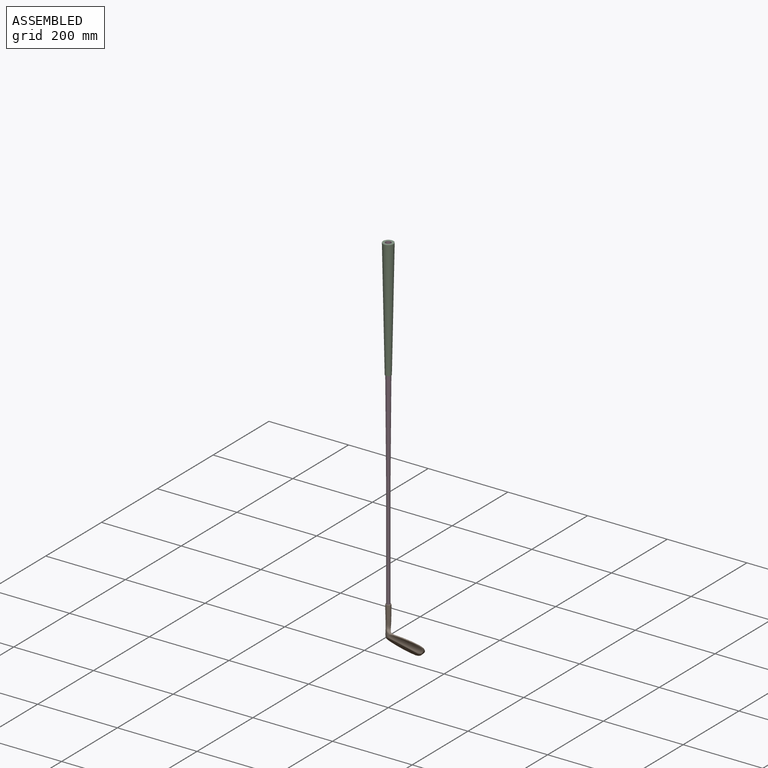
[diagram: assembled view]
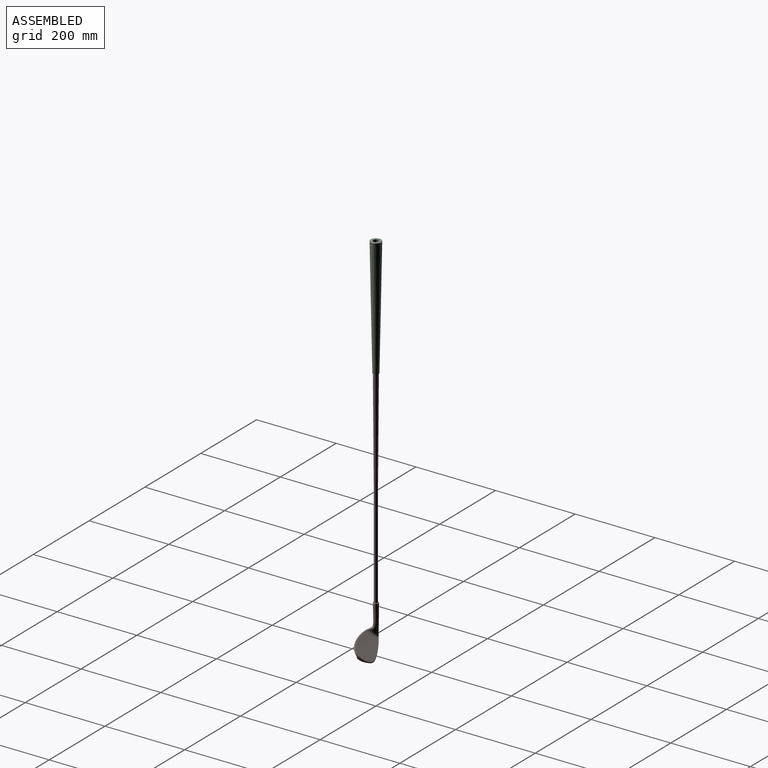
[diagram: assembled view, second angle]
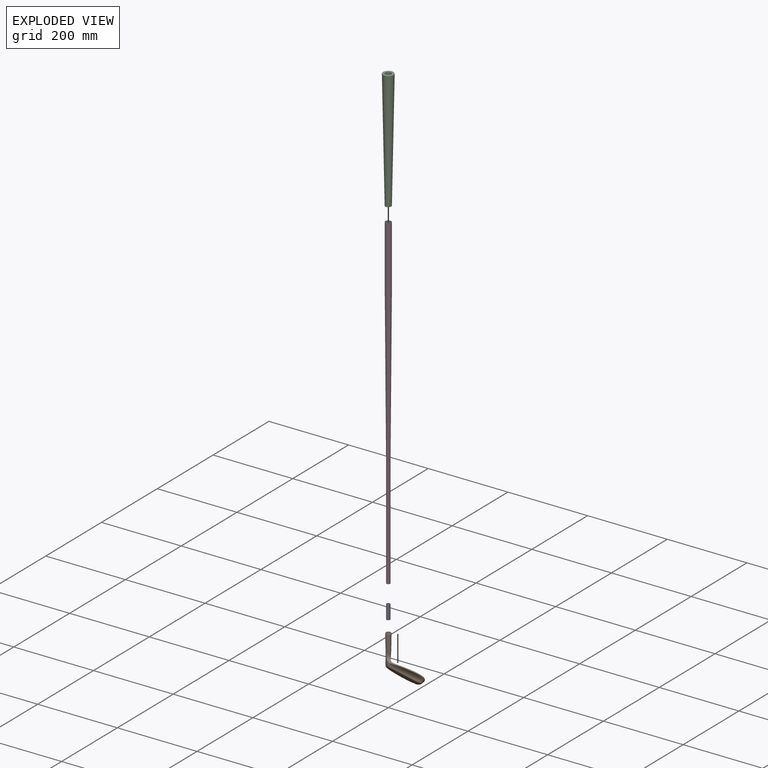
[diagram: exploded view]
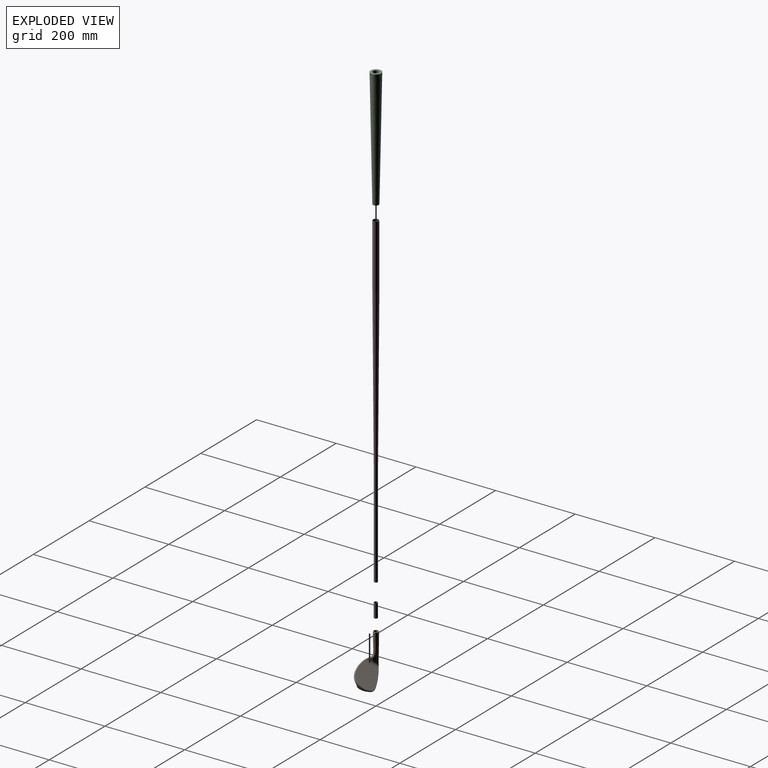
[diagram: exploded view, second angle]
ASSEMBLY  parts=4 mates=3
PART A: 4 faces, bbox 9x35x9 mm
  f0: cylinder r=4.5mm len=35mm, axis (0,1,0), area 990.6mm2, adj f1,f2
  f1: plane 9.01x9.01mm, normal (0,-1,0), area 15.9mm2, adj f0,f3
  f2: plane 9.01x9.01mm, normal (0,1,0), area 15.9mm2, adj f0,f3
  f3: cylinder r=3.9mm len=35mm, axis (0,1,0), area 858.5mm2, adj f1,f2
PART B: 27 faces, bbox 89.9x120.4x45.7 mm
  f0: bspline ~47.96x28.33mm, area 763.5mm2, adj f13,f20,f21,f22
  f1: bspline ~56.34x10.85mm, area 512.6mm2, adj f2,f3,f4,f6,f12,f24
  f2: bspline ~12.59x8.96mm, area 113.2mm2, adj f1,f4,f23,f24
  f3: bspline ~5.36x2.33mm, area 2.9mm2, adj f1,f23,f24
  f4: bspline ~19.62x8.18mm, area 153.8mm2, adj f1,f2,f6,f8,f23
  f5: bspline ~35.44x7.05mm, area 149.7mm2, adj f8,f12,f14,f23
  f6: bspline ~43.74x36.68mm, area 545.2mm2, adj f1,f4,f8,f12,f13,f16,f17,f22
  f7: bspline ~10.82x7.12mm, area 52.5mm2, adj f9,f13,f15,f16
  f8: bspline ~33.3x11.17mm, area 226.4mm2, adj f4,f5,f6,f14,f15,f16
  f9: bspline ~21.13x14.35mm, area 252.4mm2, adj f7,f10,f13,f14,f15,f20
  f10: bspline ~42.31x24.06mm, area 284.7mm2, adj f9,f11,f14,f18,f19,f20
  f11: bspline ~32.77x29.93mm, area 242mm2, adj f10,f12,f14,f18
  f12: bspline ~83.38x31.9mm, area 1117.2mm2, adj f1,f5,f6,f11,f17,f18,f23
  f13: bspline ~19.91x13.93mm, area 182.3mm2, adj f0,f6,f7,f9,f16,f22
  f14: bspline ~37.1x22.41mm, area 283.7mm2, adj f5,f8,f9,f10,f11,f15
  f15: bspline ~14.02x5.47mm, area 66.4mm2, adj f7,f8,f9,f14
  f16: bspline ~11.97x6.04mm, area 55.9mm2, adj f6,f7,f8,f13
  f17: bspline ~71.83x25.45mm, area 1620.9mm2, adj f6,f12,f18,f21,f22
  f18: bspline ~80.76x34.28mm, area 2834.7mm2, adj f10,f11,f12,f17,f19,f21
  f19: bspline ~29.85x17.26mm, area 347.9mm2, adj f10,f18,f20,f21
  f20: bspline ~52.75x29.91mm, area 975mm2, adj f0,f9,f10,f19
  f21: bspline ~25.13x15.42mm, area 329.3mm2, adj f0,f17,f18,f19,f22
  f22: bspline ~43.05x12.98mm, area 243.1mm2, adj f0,f6,f13,f17,f21
  f23: bspline ~49.04x11.32mm, area 325mm2, adj f2,f3,f4,f5,f12,f24
  f24: plane 12.84x12.69mm, normal (0,1,0), area 56.8mm2, adj f1,f2,f3,f23,f25
  f25: cylinder r=4.51mm len=35mm, axis (0,1,0), area 991.7mm2, adj f24,f26
  f26: plane 9.02x9.02mm, normal (0,1,0), area 63.9mm2, adj f25
PART C: 3 faces, bbox 26.3x300x26.3 mm
  f0: cone r=7.41mm half-angle=1.1deg, axis (0,1,0), area 19403.5mm2, adj f1,f2
  f1: plane 26.34x26.34mm, normal (0,1,0), area 372.5mm2, adj f0,f2
  f2: cylinder r=7.41mm len=300mm, axis (0,-1,0), area 13971mm2, adj f0,f1
PART D: 9 faces, bbox 14.8x820x14.8 mm
  f0: cylinder r=4.5mm len=265mm, axis (0,-1,0), area 7500.3mm2, adj f1,f3
  f1: plane 9.01x9.01mm, normal (0,-1,0), area 15.9mm2, adj f0,f2
  f2: cylinder r=3.9mm len=265mm, axis (0,-1,0), area 6499.7mm2, adj f1,f4
  f3: cone r=4.5mm half-angle=0.4deg, axis (0,1,0), area 14936.2mm2, adj f0,f7
  f4: plane 7.99x7.99mm, normal (0,1,0), area 2.3mm2, adj f2,f5
  f5: cone r=6.89mm half-angle=0.4deg, axis (0,1,0), area 13682.1mm2, adj f4,f6
  f6: cylinder r=6.89mm len=155mm, axis (0,-1,0), area 6712.5mm2, adj f5,f8
  f7: cylinder r=7.38mm len=155mm, axis (0,-1,0), area 7188.2mm2, adj f3,f8
  f8: plane 14.76x14.76mm, normal (0,1,0), area 21.9mm2, adj f6,f7
PLACE A rot(axis=(1,0,0),90deg) t=(0,0,-80)mm
PLACE B rot(axis=(1,0,0),90deg) t=(0,0,0)mm
PLACE C rot(axis=(1,0,0),90deg) t=(0,0,-480)mm
PLACE D rot(axis=(1,0,0),90deg) t=(0,0,-100)mm
MATE fastened A.f3 <-> D.f0  axis (0,0,1) through (0,0,0)mm
MATE fastened B.f25 <-> A.f3  axis (0,0,1) through (0,0,0)mm
MATE fastened D.f5 <-> C.f0  axis (0,0,-1) through (0,0,820)mm
